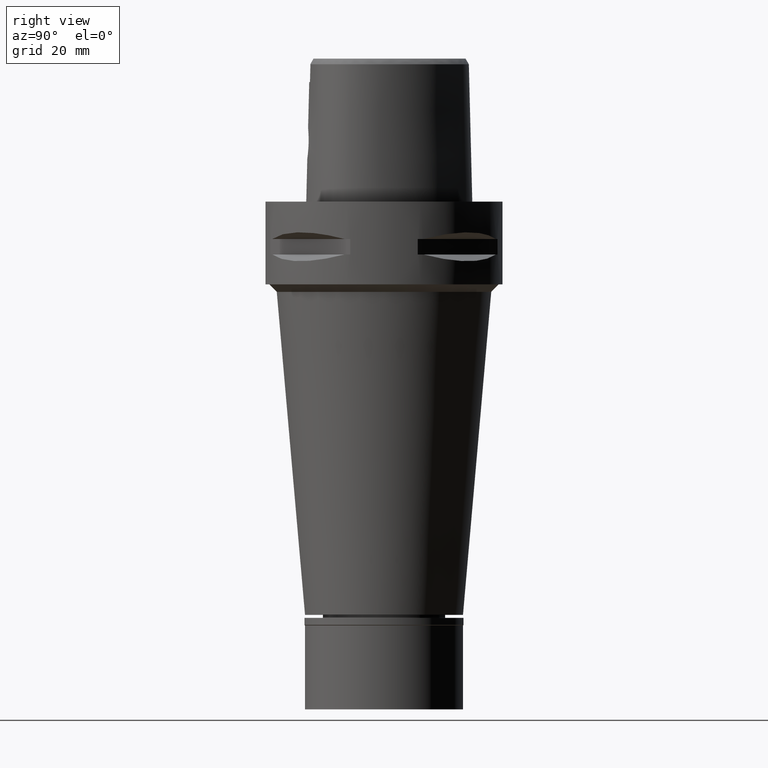
[diagram: clean part render]
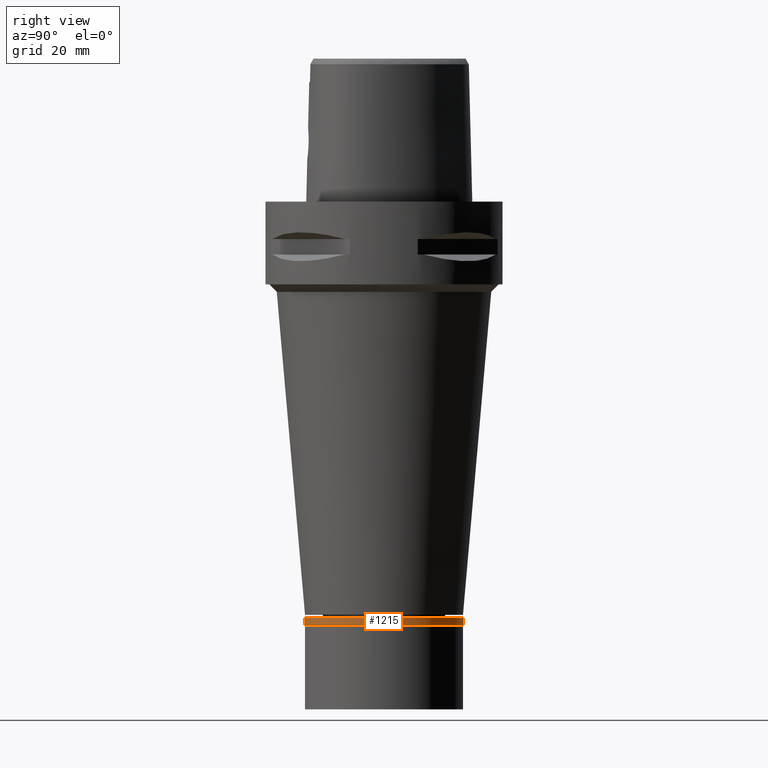
[diagram: same view with one face highlighted and labeled with its STEP entity id]
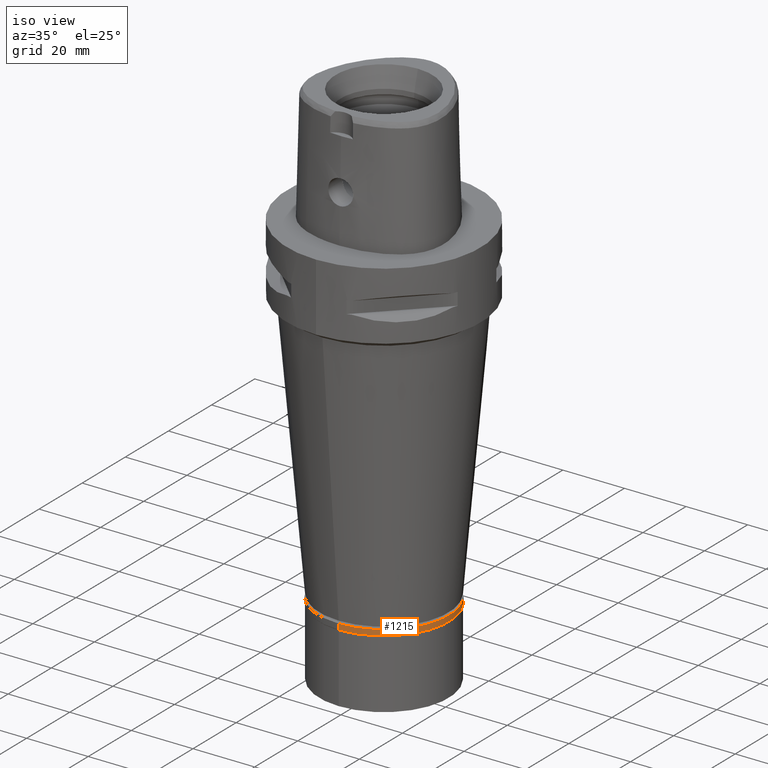
[diagram: same view with one face highlighted and labeled with its STEP entity id]
A machine part, right view. The second image highlights one B-rep face of the part: STEP entity #1215.
A second angle (iso view) of the same face is appended — the face is thin or edge-on in the first view.
In plain terms, the highlighted cylindrical surface (partial cylindrical patch) has radius 21.15 mm, axis along (0, 0, -1).
Its self-contained STEP definition (entity closure, byte-faithful):
#6 = VERTEX_POINT ( 'NONE', #1010 ) ;
#121 = DIRECTION ( 'NONE',  ( 0.0000000000000000000, 0.0000000000000000000, -1.000000000000000000 ) ) ;
#221 = VECTOR ( 'NONE', #1830, 1000.000000000000000 ) ;
#285 = ORIENTED_EDGE ( 'NONE', *, *, #4568, .T. ) ;
#397 = EDGE_CURVE ( 'NONE', #3415, #970, #1388, .T. ) ;
#520 = ORIENTED_EDGE ( 'NONE', *, *, #1574, .T. ) ;
#931 = DIRECTION ( 'NONE',  ( 0.0000000000000000000, 0.0000000000000000000, -1.000000000000000000 ) ) ;
#960 = CARTESIAN_POINT ( 'NONE',  ( 0.0000000000000000000, 0.0000000000000000000, -1.850000000000000089 ) ) ;
#970 = VERTEX_POINT ( 'NONE', #2562 ) ;
#979 = DIRECTION ( 'NONE',  ( 0.0000000000000000000, 0.0000000000000000000, -1.000000000000000000 ) ) ;
#1010 = CARTESIAN_POINT ( 'NONE',  ( 0.0000000000000000000, 21.14999999999999858, -1.850000000000000089 ) ) ;
#1011 = EDGE_CURVE ( 'NONE', #1245, #6, #2209, .T. ) ;
#1215 = ADVANCED_FACE ( 'NONE', ( #2875 ), #4431, .T. ) ;
#1245 = VERTEX_POINT ( 'NONE', #2077 ) ;
#1358 = DIRECTION ( 'NONE',  ( 0.0000000000000000000, 1.000000000000000000, 0.0000000000000000000 ) ) ;
#1388 = LINE ( 'NONE', #4940, #3702 ) ;
#1574 = EDGE_CURVE ( 'NONE', #1245, #3415, #4238, .T. ) ;
#1675 = DIRECTION ( 'NONE',  ( 0.0000000000000000000, -1.000000000000000000, 0.0000000000000000000 ) ) ;
#1754 = CARTESIAN_POINT ( 'NONE',  ( 0.0000000000000000000, 21.14999999999999858, 0.0000000000000000000 ) ) ;
#1830 = DIRECTION ( 'NONE',  ( 0.0000000000000000000, 0.0000000000000000000, -1.000000000000000000 ) ) ;
#2077 = CARTESIAN_POINT ( 'NONE',  ( 0.0000000000000000000, 21.14999999999999858, 0.0000000000000000000 ) ) ;
#2209 = LINE ( 'NONE', #1754, #221 ) ;
#2265 = ORIENTED_EDGE ( 'NONE', *, *, #397, .T. ) ;
#2281 = AXIS2_PLACEMENT_3D ( 'NONE', #960, #3283, #2509 ) ;
#2509 = DIRECTION ( 'NONE',  ( 0.0000000000000000000, -1.000000000000000000, 0.0000000000000000000 ) ) ;
#2562 = CARTESIAN_POINT ( 'NONE',  ( 0.0000000000000000000, -21.14999999999999858, -1.850000000000000089 ) ) ;
#2681 = AXIS2_PLACEMENT_3D ( 'NONE', #3660, #121, #1358 ) ;
#2875 = FACE_OUTER_BOUND ( 'NONE', #3796, .T. ) ;
#2889 = CARTESIAN_POINT ( 'NONE',  ( 0.0000000000000000000, -21.14999999999999858, 0.0000000000000000000 ) ) ;
#3094 = AXIS2_PLACEMENT_3D ( 'NONE', #3623, #931, #1675 ) ;
#3185 = ORIENTED_EDGE ( 'NONE', *, *, #1011, .F. ) ;
#3283 = DIRECTION ( 'NONE',  ( 0.0000000000000000000, 0.0000000000000000000, 1.000000000000000000 ) ) ;
#3415 = VERTEX_POINT ( 'NONE', #2889 ) ;
#3623 = CARTESIAN_POINT ( 'NONE',  ( 0.0000000000000000000, 0.0000000000000000000, 0.0000000000000000000 ) ) ;
#3660 = CARTESIAN_POINT ( 'NONE',  ( 0.0000000000000000000, 0.0000000000000000000, 0.0000000000000000000 ) ) ;
#3702 = VECTOR ( 'NONE', #979, 1000.000000000000000 ) ;
#3796 = EDGE_LOOP ( 'NONE', ( #520, #2265, #285, #3185 ) ) ;
#4238 = CIRCLE ( 'NONE', #2681, 21.14999999999999858 ) ;
#4431 = CYLINDRICAL_SURFACE ( 'NONE', #3094, 21.14999999999999858 ) ;
#4568 = EDGE_CURVE ( 'NONE', #970, #6, #4981, .T. ) ;
#4940 = CARTESIAN_POINT ( 'NONE',  ( 0.0000000000000000000, -21.14999999999999858, 0.0000000000000000000 ) ) ;
#4981 = CIRCLE ( 'NONE', #2281, 21.14999999999999858 ) ;